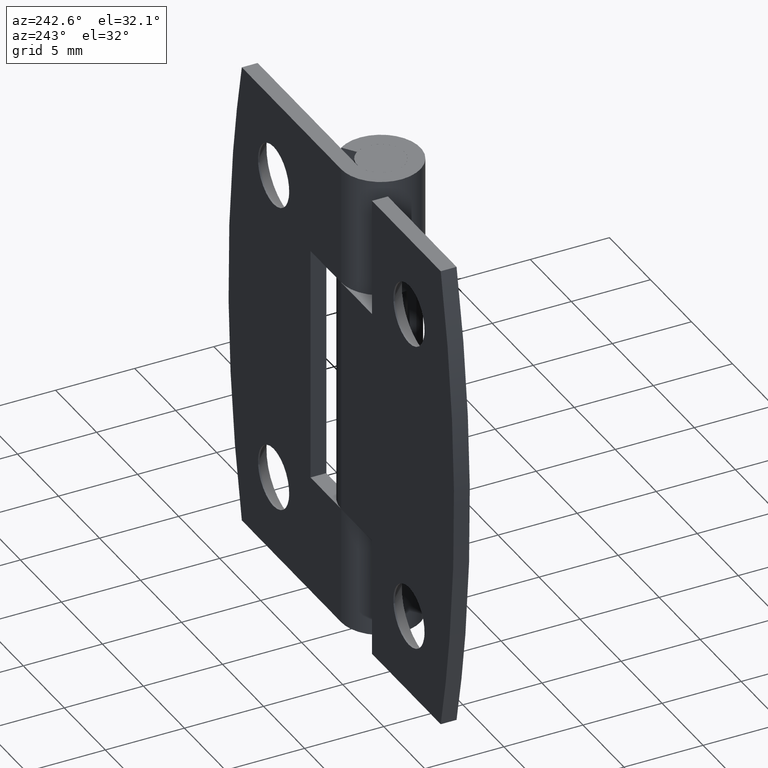
[diagram: clean part render]
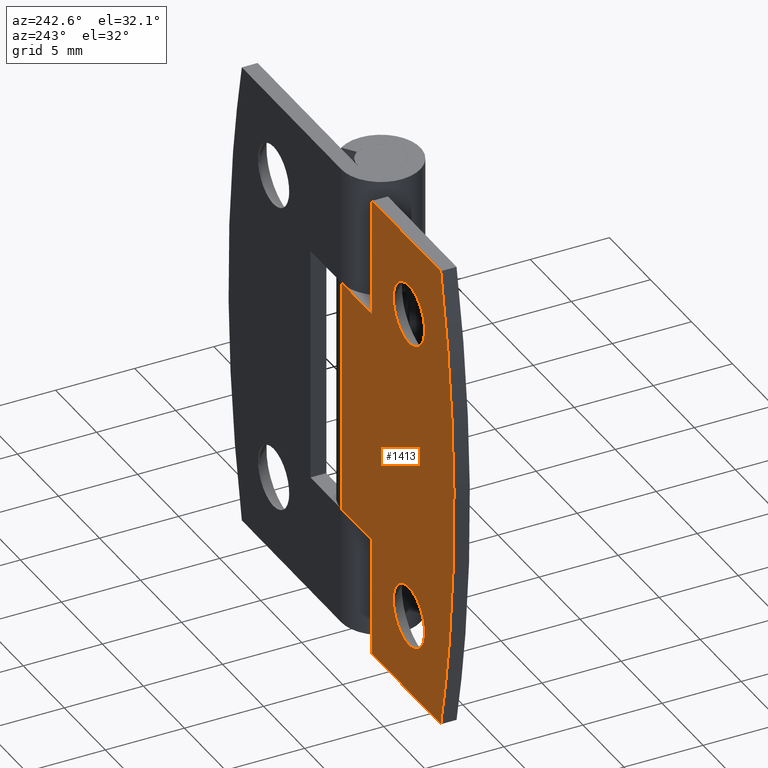
[diagram: same view with one face highlighted and labeled with its STEP entity id]
A machine part, auxiliary view. The second image highlights one B-rep face of the part: STEP entity #1413.
In plain terms, the highlighted face is a freeform B-spline surface patch.
Its self-contained STEP definition (entity closure, byte-faithful):
#330=CARTESIAN_POINT('',(-6.362408535458841,2.500000000000000,24.783208710988280));
#331=VERTEX_POINT('',#330);
#337=CARTESIAN_POINT('',(-8.250000000000000,2.500000000000000,23.100000000000001));
#338=VERTEX_POINT('',#337);
#339=CARTESIAN_POINT('',(-6.362408535458842,2.500000000000000,24.783208710988287));
#340=CARTESIAN_POINT('',(-6.555726336124399,2.499999999999999,23.100000000000009));
#341=CARTESIAN_POINT('',(-8.250000000000000,2.500000000000000,23.100000000000001));
#349=(BOUNDED_CURVE()B_SPLINE_CURVE(2,(#339,#340,#341),.UNSPECIFIED.,.F.,.U.)B_SPLINE_CURVE_WITH_KNOTS((3,3),(0.269767760539683,0.500000000000000),.UNSPECIFIED.)CURVE()GEOMETRIC_REPRESENTATION_ITEM()RATIONAL_B_SPLINE_CURVE((0.957343727262304,0.730266153239353,1.0))REPRESENTATION_ITEM(''));
#350=EDGE_CURVE('',#331,#338,#349,.T.);
#352=CARTESIAN_POINT('',(-10.146456116960390,2.500000000000000,24.884007774210790));
#353=VERTEX_POINT('',#352);
#354=CARTESIAN_POINT('',(-8.250000000000000,2.500000000000000,23.100000000000001));
#355=CARTESIAN_POINT('',(-10.037341525849927,2.500000000000000,23.100000000000001));
#356=CARTESIAN_POINT('',(-10.146456116960387,2.500000000000000,24.884007774210797));
#364=(BOUNDED_CURVE()B_SPLINE_CURVE(2,(#354,#355,#356),.UNSPECIFIED.,.F.,.U.)B_SPLINE_CURVE_WITH_KNOTS((3,3),(0.500000000000000,0.739332962119507),.UNSPECIFIED.)CURVE()GEOMETRIC_REPRESENTATION_ITEM()RATIONAL_B_SPLINE_CURVE((1.0,0.719603993426638,0.976072041410744))REPRESENTATION_ITEM(''));
#365=EDGE_CURVE('',#338,#353,#364,.T.);
#460=CARTESIAN_POINT('',(-8.250000000000000,2.500000000000000,26.899999999999999));
#461=VERTEX_POINT('',#460);
#462=CARTESIAN_POINT('',(-10.146456116960387,2.500000000000000,24.884007774210790));
#463=CARTESIAN_POINT('',(-10.150000000000006,2.500000000000000,24.941949749057816));
#464=CARTESIAN_POINT('',(-10.150000000000000,2.500000000000000,25.0));
#465=CARTESIAN_POINT('',(-10.150000000000000,2.500000000000000,26.900000000000006));
#466=CARTESIAN_POINT('',(-8.250000000000000,2.500000000000000,26.899999999999999));
#474=(BOUNDED_CURVE()B_SPLINE_CURVE(2,(#462,#463,#464,#465,#466),.UNSPECIFIED.,.F.,.U.)B_SPLINE_CURVE_WITH_KNOTS((3,2,3),(0.739332962119508,0.750000000000000,1.0),.UNSPECIFIED.)CURVE()GEOMETRIC_REPRESENTATION_ITEM()RATIONAL_B_SPLINE_CURVE((0.976072041410746,0.987502787759911,1.0,0.707106781186547,1.0))REPRESENTATION_ITEM(''));
#475=EDGE_CURVE('',#353,#461,#474,.T.);
#477=CARTESIAN_POINT('',(-8.250000000000000,2.500000000000000,26.899999999999999));
#478=CARTESIAN_POINT('',(-6.350000000000001,2.500000000000000,26.900000000000006));
#479=CARTESIAN_POINT('',(-6.350000000000001,2.500000000000000,25.0));
#480=CARTESIAN_POINT('',(-6.350000000000000,2.500000000000000,24.891249227190208));
#481=CARTESIAN_POINT('',(-6.362408535458841,2.500000000000000,24.783208710988283));
#489=(BOUNDED_CURVE()B_SPLINE_CURVE(2,(#477,#478,#479,#480,#481),.UNSPECIFIED.,.F.,.U.)B_SPLINE_CURVE_WITH_KNOTS((3,2,3),(0.0,0.250000000000000,0.269767760539683),.UNSPECIFIED.)CURVE()GEOMETRIC_REPRESENTATION_ITEM()RATIONAL_B_SPLINE_CURVE((1.0,0.707106781186547,1.0,0.976840627947195,0.957343727262304))REPRESENTATION_ITEM(''));
#490=EDGE_CURVE('',#461,#331,#489,.T.);
#658=CARTESIAN_POINT('',(-6.362408535458842,2.500000000000000,4.783208710988285));
#659=VERTEX_POINT('',#658);
#665=CARTESIAN_POINT('',(-8.250000000000000,2.500000000000000,3.100000000000001));
#666=VERTEX_POINT('',#665);
#667=CARTESIAN_POINT('',(-6.362408535458842,2.500000000000000,4.783208710988285));
#668=CARTESIAN_POINT('',(-6.555726336124398,2.500000000000000,3.100000000000000));
#669=CARTESIAN_POINT('',(-8.250000000000000,2.500000000000000,3.100000000000001));
#677=(BOUNDED_CURVE()B_SPLINE_CURVE(2,(#667,#668,#669),.UNSPECIFIED.,.F.,.U.)B_SPLINE_CURVE_WITH_KNOTS((3,3),(0.269767760539683,0.500000000000000),.UNSPECIFIED.)CURVE()GEOMETRIC_REPRESENTATION_ITEM()RATIONAL_B_SPLINE_CURVE((0.957343727262304,0.730266153239353,1.0))REPRESENTATION_ITEM(''));
#678=EDGE_CURVE('',#659,#666,#677,.T.);
#680=CARTESIAN_POINT('',(-10.146456116960390,2.500000000000000,4.884007774210796));
#681=VERTEX_POINT('',#680);
#682=CARTESIAN_POINT('',(-8.250000000000000,2.500000000000000,3.100000000000001));
#683=CARTESIAN_POINT('',(-10.037341525849950,2.500000000000000,3.100000000000001));
#684=CARTESIAN_POINT('',(-10.146456116960387,2.500000000000000,4.884007774210796));
#692=(BOUNDED_CURVE()B_SPLINE_CURVE(2,(#682,#683,#684),.UNSPECIFIED.,.F.,.U.)B_SPLINE_CURVE_WITH_KNOTS((3,3),(0.500000000000000,0.739332962119510),.UNSPECIFIED.)CURVE()GEOMETRIC_REPRESENTATION_ITEM()RATIONAL_B_SPLINE_CURVE((1.0,0.719603993426635,0.976072041410749))REPRESENTATION_ITEM(''));
#693=EDGE_CURVE('',#666,#681,#692,.T.);
#788=CARTESIAN_POINT('',(-8.250000000000000,2.500000000000000,6.900000000000000));
#789=VERTEX_POINT('',#788);
#790=CARTESIAN_POINT('',(-10.146456116960387,2.500000000000000,4.884007774210796));
#791=CARTESIAN_POINT('',(-10.150000000000002,2.500000000000000,4.941949749057817));
#792=CARTESIAN_POINT('',(-10.150000000000000,2.500000000000000,5.0));
#793=CARTESIAN_POINT('',(-10.150000000000000,2.500000000000000,6.900000000000000));
#794=CARTESIAN_POINT('',(-8.250000000000000,2.500000000000000,6.900000000000000));
#802=(BOUNDED_CURVE()B_SPLINE_CURVE(2,(#790,#791,#792,#793,#794),.UNSPECIFIED.,.F.,.U.)B_SPLINE_CURVE_WITH_KNOTS((3,2,3),(0.739332962119508,0.750000000000000,1.0),.UNSPECIFIED.)CURVE()GEOMETRIC_REPRESENTATION_ITEM()RATIONAL_B_SPLINE_CURVE((0.976072041410747,0.987502787759911,1.0,0.707106781186547,1.0))REPRESENTATION_ITEM(''));
#803=EDGE_CURVE('',#681,#789,#802,.T.);
#805=CARTESIAN_POINT('',(-8.250000000000000,2.500000000000000,6.900000000000000));
#806=CARTESIAN_POINT('',(-6.350000000000001,2.500000000000000,6.900000000000000));
#807=CARTESIAN_POINT('',(-6.350000000000001,2.500000000000000,5.0));
#808=CARTESIAN_POINT('',(-6.350000000000000,2.500000000000000,4.891249227190207));
#809=CARTESIAN_POINT('',(-6.362408535458843,2.500000000000000,4.783208710988285));
#817=(BOUNDED_CURVE()B_SPLINE_CURVE(2,(#805,#806,#807,#808,#809),.UNSPECIFIED.,.F.,.U.)B_SPLINE_CURVE_WITH_KNOTS((3,2,3),(0.0,0.250000000000000,0.269767760539683),.UNSPECIFIED.)CURVE()GEOMETRIC_REPRESENTATION_ITEM()RATIONAL_B_SPLINE_CURVE((1.0,0.707106781186547,1.0,0.976840627947195,0.957343727262304))REPRESENTATION_ITEM(''));
#818=EDGE_CURVE('',#789,#659,#817,.T.);
#965=CARTESIAN_POINT('',(-3.750000000000000,2.500000000000000,7.500000000000000));
#966=VERTEX_POINT('',#965);
#972=CARTESIAN_POINT('',(0.0,2.500000000000000,7.500000000000000));
#973=VERTEX_POINT('',#972);
#974=CARTESIAN_POINT('',(-3.750000000000000,2.500000000000000,7.500000000000000));
#975=CARTESIAN_POINT('',(0.0,2.500000000000000,7.500000000000000));
#976=QUASI_UNIFORM_CURVE('',1,(#974,#975),.UNSPECIFIED.,.F.,.U.);
#977=EDGE_CURVE('',#966,#973,#976,.T.);
#1087=CARTESIAN_POINT('',(0.0,2.500000000000000,22.500000000000000));
#1088=VERTEX_POINT('',#1087);
#1104=CARTESIAN_POINT('',(-3.750000000000000,2.499999999999945,22.500000000000000));
#1105=VERTEX_POINT('',#1104);
#1106=CARTESIAN_POINT('',(-3.750000000000000,2.499999999999945,22.500000000000000));
#1107=CARTESIAN_POINT('',(0.0,2.500000000000000,22.500000000000000));
#1108=QUASI_UNIFORM_CURVE('',1,(#1106,#1107),.UNSPECIFIED.,.F.,.U.);
#1109=EDGE_CURVE('',#1105,#1088,#1108,.T.);
#1219=CARTESIAN_POINT('',(0.0,2.500000000000000,22.500000000000000));
#1220=CARTESIAN_POINT('',(0.0,2.500000000000000,7.500000000000000));
#1221=QUASI_UNIFORM_CURVE('',1,(#1219,#1220),.UNSPECIFIED.,.F.,.U.);
#1222=EDGE_CURVE('',#1088,#973,#1221,.T.);
#1243=CARTESIAN_POINT('',(-12.123972995301459,2.499999999999945,29.999993894591551));
#1244=VERTEX_POINT('',#1243);
#1245=CARTESIAN_POINT('',(-12.123970000000000,2.499999999999945,0.0));
#1246=VERTEX_POINT('',#1245);
#1247=CARTESIAN_POINT('',(-12.123972995301459,2.499999999999945,29.999993894591551));
#1248=CARTESIAN_POINT('',(-15.414696112441346,2.499999999999945,14.999996792033844));
#1249=CARTESIAN_POINT('',(-12.123970000000000,2.499999999999945,0.0));
#1257=(BOUNDED_CURVE()B_SPLINE_CURVE(2,(#1247,#1248,#1249),.UNSPECIFIED.,.F.,.U.)CURVE()GEOMETRIC_REPRESENTATION_ITEM()QUASI_UNIFORM_CURVE()RATIONAL_B_SPLINE_CURVE((1.0,0.976771032679662,1.0))REPRESENTATION_ITEM(''));
#1258=EDGE_CURVE('',#1244,#1246,#1257,.T.);
#1295=CARTESIAN_POINT('',(-3.750000000000000,2.499999999999945,0.0));
#1296=VERTEX_POINT('',#1295);
#1297=CARTESIAN_POINT('',(-3.750000000000000,2.499999999999945,0.0));
#1298=CARTESIAN_POINT('',(-12.123970000000000,2.499999999999945,0.0));
#1299=QUASI_UNIFORM_CURVE('',1,(#1297,#1298),.UNSPECIFIED.,.F.,.U.);
#1300=EDGE_CURVE('',#1296,#1246,#1299,.T.);
#1330=CARTESIAN_POINT('',(-3.750000000000000,2.500000000000000,7.500000000000000));
#1331=CARTESIAN_POINT('',(-3.750000000000000,2.499999999999945,0.0));
#1332=QUASI_UNIFORM_CURVE('',1,(#1330,#1331),.UNSPECIFIED.,.F.,.U.);
#1333=EDGE_CURVE('',#966,#1296,#1332,.T.);
#1343=CARTESIAN_POINT('',(-3.750000000000000,2.499999999999945,30.0));
#1344=VERTEX_POINT('',#1343);
#1345=CARTESIAN_POINT('',(-12.123972995301459,2.499999999999945,29.999993894591551));
#1346=CARTESIAN_POINT('',(-3.750000000000000,2.499999999999945,30.0));
#1347=QUASI_UNIFORM_CURVE('',1,(#1345,#1346),.UNSPECIFIED.,.F.,.U.);
#1348=EDGE_CURVE('',#1244,#1344,#1347,.T.);
#1377=CARTESIAN_POINT('',(-3.750000000000000,2.499999999999945,30.0));
#1378=CARTESIAN_POINT('',(-3.750000000000000,2.499999999999945,22.500000000000000));
#1379=QUASI_UNIFORM_CURVE('',1,(#1377,#1378),.UNSPECIFIED.,.F.,.U.);
#1380=EDGE_CURVE('',#1344,#1105,#1379,.T.);
#1386=CARTESIAN_POINT('',(-14.436811514892250,2.500000000000000,31.498499941854181));
#1387=CARTESIAN_POINT('',(0.686812796556182,2.500000000000000,31.498499941854181));
#1388=CARTESIAN_POINT('',(-14.436811514892250,2.500000000000000,-1.498500746516883));
#1389=CARTESIAN_POINT('',(0.686812796556182,2.500000000000000,-1.498500746516883));
#1390=B_SPLINE_SURFACE_WITH_KNOTS('',1,1,((#1386,#1388),(#1387,#1389)),.UNSPECIFIED.,.F.,.F.,.U.,(2,2),(2,2),(0.0,15.123624311448429),(0.0,32.997000688371060),.UNSPECIFIED.);
#1391=ORIENTED_EDGE('',*,*,#1348,.T.);
#1392=ORIENTED_EDGE('',*,*,#1380,.T.);
#1393=ORIENTED_EDGE('',*,*,#1109,.T.);
#1394=ORIENTED_EDGE('',*,*,#1222,.T.);
#1395=ORIENTED_EDGE('',*,*,#977,.F.);
#1396=ORIENTED_EDGE('',*,*,#1333,.T.);
#1397=ORIENTED_EDGE('',*,*,#1300,.T.);
#1398=ORIENTED_EDGE('',*,*,#1258,.F.);
#1399=EDGE_LOOP('',(#1391,#1392,#1393,#1394,#1395,#1396,#1397,#1398));
#1400=FACE_OUTER_BOUND('',#1399,.T.);
#1401=ORIENTED_EDGE('',*,*,#693,.F.);
#1402=ORIENTED_EDGE('',*,*,#678,.F.);
#1403=ORIENTED_EDGE('',*,*,#818,.F.);
#1404=ORIENTED_EDGE('',*,*,#803,.F.);
#1405=EDGE_LOOP('',(#1401,#1402,#1403,#1404));
#1406=FACE_BOUND('',#1405,.T.);
#1407=ORIENTED_EDGE('',*,*,#365,.F.);
#1408=ORIENTED_EDGE('',*,*,#350,.F.);
#1409=ORIENTED_EDGE('',*,*,#490,.F.);
#1410=ORIENTED_EDGE('',*,*,#475,.F.);
#1411=EDGE_LOOP('',(#1407,#1408,#1409,#1410));
#1412=FACE_BOUND('',#1411,.T.);
#1413=ADVANCED_FACE('',(#1400,#1406,#1412),#1390,.T.);